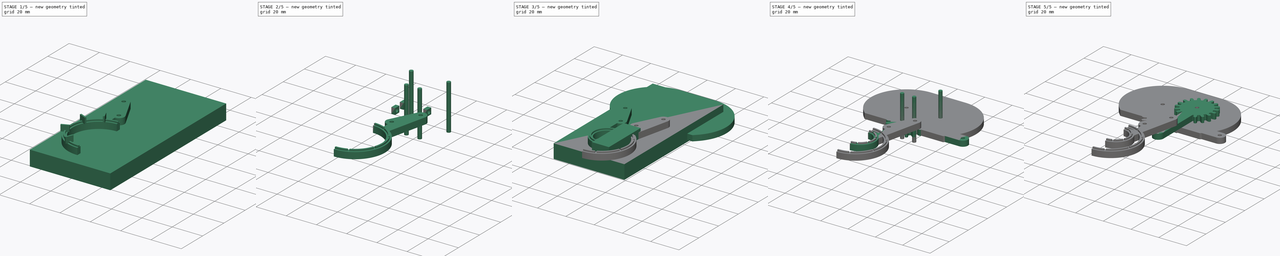
[diagram: build sequence overview — one tinted view per stage of 5, left to right]
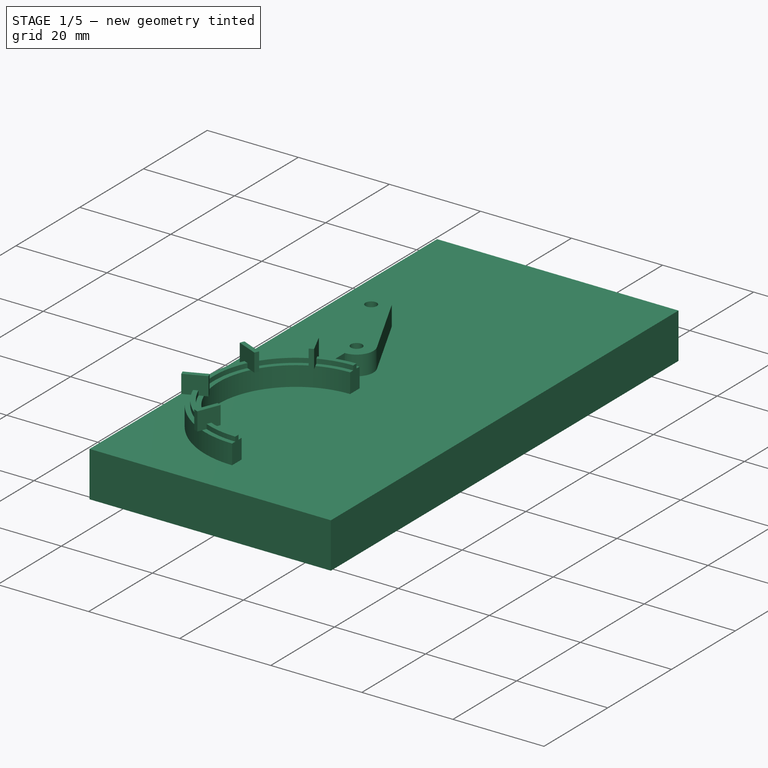
[diagram: stage 1 of 5 — iso view after this stage's code; geometry added in this stage tinted green]
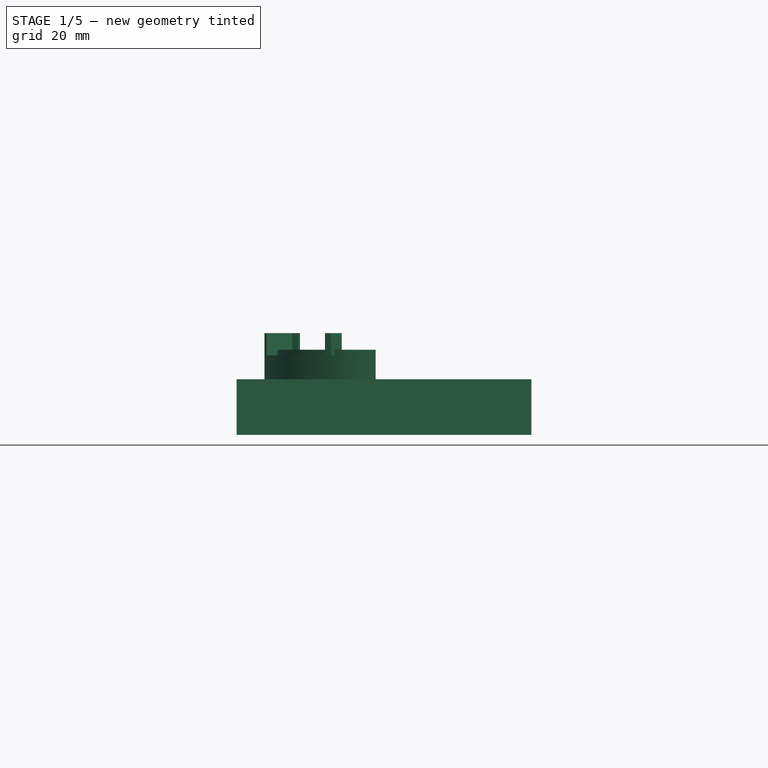
[diagram: stage 1 of 5 — front view after this stage's code; geometry added in this stage tinted green]
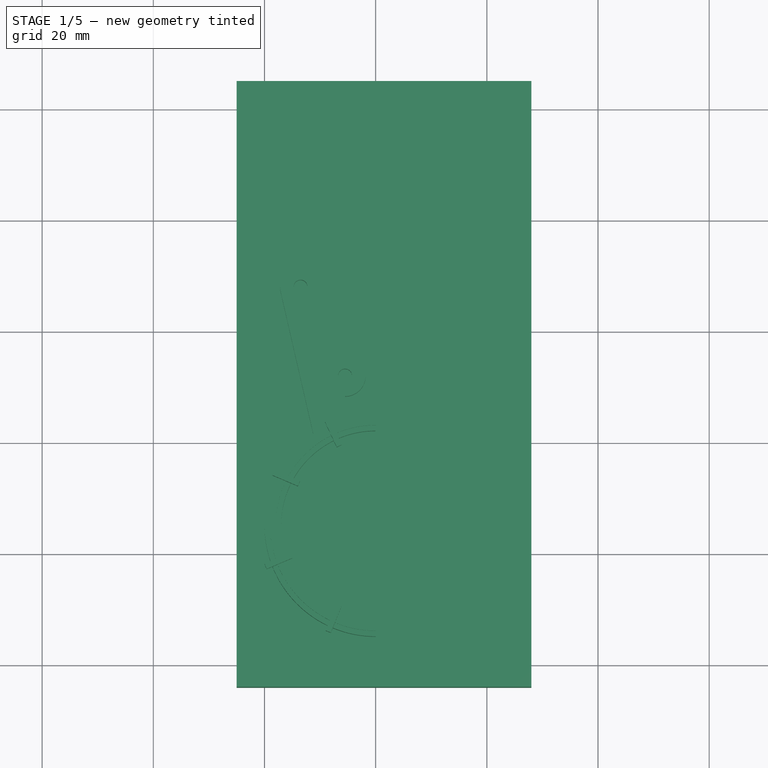
[diagram: stage 1 of 5 — top view after this stage's code; geometry added in this stage tinted green]
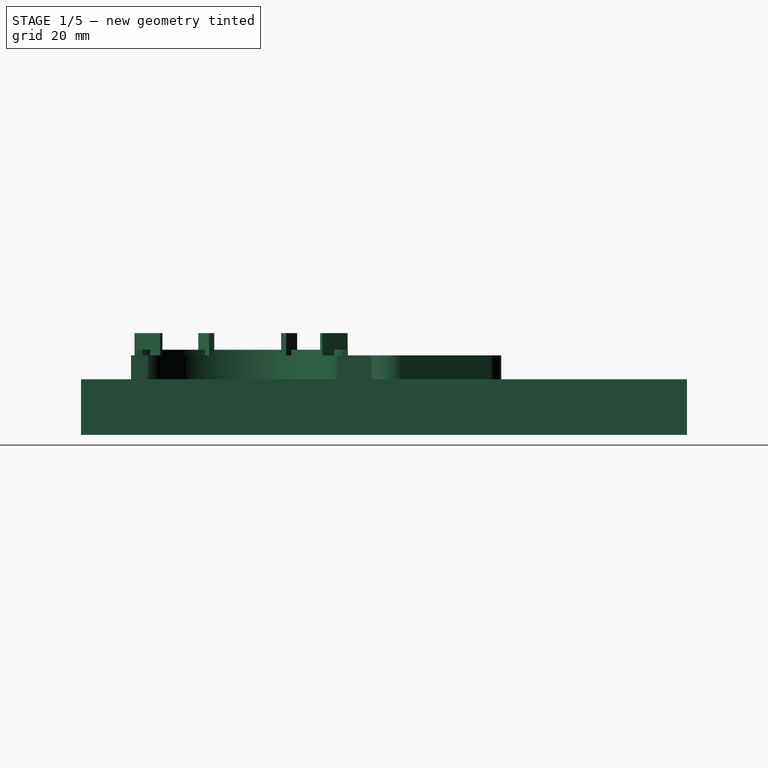
[diagram: stage 1 of 5 — right view after this stage's code; geometry added in this stage tinted green]
FCSTD DOCUMENT  (FreeCAD 0.19R24267 +99 (Git))
Label: garra_marina
License: All rights reserved
LicenseURL: http://en.wikipedia.org/wiki/All_rights_reserved
objects: Part::Cut×22, Part::Box×20, Part::FeaturePython×19, Part::MultiFuse×18, Part::Cylinder×16, Sketcher::SketchObject×10, PartDesign::Pad×8, PartDesign::Pocket×2, Part::Part2DObjectPython×2, Part::Extrusion×2, Part::Mirroring×2, PartDesign::Body×1
note: 132 computed .brp shape members not serialized (recipe doc carries the construction recipe); baked Part::Feature solids carry a one-line shape summary decoded from their .brp

FEATURE [Sketcher::SketchObject] Sketch008  label="finger-sketch001"
  FullyConstrained = false
  MapMode = 5
  sketch-geometry (9):
    g0: LineSegment StartX=0 StartY=0 StartZ=0 EndX=0 EndY=18 EndZ=0
    g1: LineSegment StartX=0 StartY=18 StartZ=0 EndX=-5.5 EndY=18 EndZ=0
    g2: LineSegment StartX=-5.5 StartY=18 StartZ=0 EndX=-5.5 EndY=25.2 EndZ=0
    g3: LineSegment StartX=-17.1064 StartY=44.073 StartZ=0 EndX=-7 EndY=0 EndZ=0
    g4: LineSegment StartX=-7 StartY=0 StartZ=0 EndX=0 EndY=0 EndZ=0
    g5: ArcOfCircle CenterX=-13.5 CenterY=44.9 CenterZ=0 NormalX=0 NormalY=0 NormalZ=1 AngleXU=0 Radius=3.7 StartAngle=0.463648 EndAngle=3.36701
    g6: ArcOfCircle CenterX=-5.5 CenterY=28.9 CenterZ=0 NormalX=0 NormalY=0 NormalZ=1 AngleXU=0 Radius=3.7 StartAngle=4.71239 EndAngle=6.74684
    g7: LineSegment StartX=-10.1906 StartY=46.5547 StartZ=0 EndX=-2.19063 EndY=30.5547 EndZ=0
    g8: Circle CenterX=-5.5 CenterY=28.9 CenterZ=0 NormalX=0 NormalY=0 NormalZ=1 AngleXU=0 Radius=3.7
  constraints (27):
    c: Vertical(g0)
    c: Coincident(g0,g1)
    c: Horizontal(g1)
    c: Coincident(g1,g2)
    c: Coincident(g3,g4)
    c: Coincident(g4,g0)
    c: Horizontal(g4)
    c: Coincident(g5,g3)
    c: Radius(g5) = 3.7
    c: Coincident(g6,g2)
    c: Coincident(g7,g5)
    c: Coincident(g7,g6)
    c: Equal(g6,g5)
    c: Tangent(g3,g5)
    c: Tangent(g7,g5)
    c: Tangent(g6,g7)
    c: Vertical(g2)
    c: DistanceY(g0) = 18
    c: DistanceX(g4) = 7
    c: DistanceX(g6,g5) = -8
    c: DistanceY(g6,g5) = 16
    c: PointOnObject(g6,g2)
    c: DistanceX(g1) = -5.5
    c: DistanceY(g2,g1) = -7.2
    c: Coincident(g0,g-1)
    c: Coincident(g8,g6)
    c: Equal(g6,g8)
FEATURE [Part::Box] Box008  label="Cubo006"
  AttacherType = Attacher::AttachEngine3D
  Height = 15
  Length = 22
  Placement = pos=(0,-79,0) rot=(0,0,1;0rad)
  Width = 51
FEATURE [Part::Cylinder] Cylinder014  label="finger-drill-master006"
  Angle = 360
  AttacherType = Attacher::AttachEngine3D
  Height = 30
  Placement = pos=(0,0,-8) rot=(0,0,1;0rad)
  Radius = 1.25
FEATURE [Part::FeaturePython] Clone027  label="finger-claw-drill-003"  # Draft clone (typed FeaturePython)
  Objects = -> [Cylinder014]
  Placement = pos=(-13.5,44.9,-8) rot=(0,0,1;0rad)
  Scale = (1,1,1)
FEATURE [Part::FeaturePython] Clone028  label="finger-claw-drill-004"  # Draft clone (typed FeaturePython)
  Objects = -> [Cylinder014]
  Placement = pos=(-5.5,28.9,-8) rot=(0,0,1;0rad)
  Scale = (1,1,1)
FEATURE [Part::FeaturePython] Tube001  # WARN: FeaturePython — macro-defined, semantics opaque (R4)
  AttacherType = Attacher::AttachEngine3D
  Height = 14
  InnerRadius = 18
  OuterRadius = 19
  Placement = pos=(0,-55,0) rot=(0,0,1;0rad)
FEATURE [Part::MultiFuse] Fusion022  label="finger-drills001"
  Shapes = -> [Clone027,Clone028]
FEATURE [PartDesign::Pad] Pad008  label="finger-body001"
  AllowMultiFace = false
  Direction = (1,1,1)
  Length = 13
  Length2 = 100
  Profile = -> Sketch008
  Type = 0
FEATURE [Sketcher::SketchObject] Sketch009
  ExternalGeometry = -> [Pad008]
  FullyConstrained = false
  MapMode = 5
  Placement = pos=(10.4694,5.23469,0) rot=(0.400447,0.647936,0.647936;2.37981rad)
  Support = -> [Pad008]
  sketch-geometry (6):
    g0: LineSegment StartX=23.2529 StartY=8.7 StartZ=0 EndX=51.2529 EndY=8.7 EndZ=0
    g1: LineSegment StartX=51.2529 StartY=8.7 StartZ=0 EndX=51.2529 EndY=4.3 EndZ=0
    g2: LineSegment StartX=51.2529 StartY=4.3 StartZ=0 EndX=23.2529 EndY=4.3 EndZ=0
    g3: LineSegment StartX=23.2529 StartY=4.3 StartZ=0 EndX=23.2529 EndY=8.7 EndZ=0
    g4: LineSegment StartX=23.2529 StartY=6.5 StartZ=0 EndX=51.2529 EndY=6.5 EndZ=0
    g5: LineSegment StartX=37.2529 StartY=13 StartZ=0 EndX=37.2529 EndY=0 EndZ=0
  constraints (18):
    c: Coincident(g0,g1)
    c: Coincident(g1,g2)
    c: Coincident(g2,g3)
    c: Coincident(g3,g0)
    c: Horizontal(g0)
    c: Horizontal(g2)
    c: Vertical(g1)
    c: Vertical(g3)
    c: PointOnObject(g4,g3)
    c: PointOnObject(g4,g1)
    c: Symmetric(g2,g0,g4)
    c: DistanceY(g1) = -4.4
    c: PointOnObject(g5,g-3)
    c: PointOnObject(g5,g-1)
    c: Symmetric(g-3,g-3,g5)
    c: Symmetric(g4,g4,g5)
    c: DistanceX(g2) = -28
    c: Symmetric(g5,g5,g4)
FEATURE [PartDesign::Pocket] Pocket001  label="finger001"
  AllowMultiFace = false
  Length = 7.4
  Length2 = 100
  Profile = -> Sketch009
  Type = 0
FEATURE [Part::Cut] Cut019  label="finger-final-src001"
  Base = -> Pocket001
  Placement = pos=(0,-57,0) rot=(0,0,1;0rad)
  Tool = -> Fusion022
FEATURE [Part::Box] Box009  label="Cubo007"
  AttacherType = Attacher::AttachEngine3D
  Height = 4
  Length = 1
  Placement = pos=(-9,-74,13) rot=(0,0,-1;0.383972rad)
  Width = 5
FEATURE [Part::Box] Box010  label="Cubo008"
  AttacherType = Attacher::AttachEngine3D
  Height = 4
  Length = 1
  Placement = pos=(-7,-41,13) rot=(0,0,1;0.436332rad)
  Width = 5
FEATURE [Part::Box] Box011  label="Cubo009"
  AttacherType = Attacher::AttachEngine3D
  Height = 4
  Length = 1
  Placement = pos=(-20,-62,13) rot=(0,0,-1;1.16937rad)
  Width = 5
FEATURE [Part::Box] Box012  label="Cubo010"
  AttacherType = Attacher::AttachEngine3D
  Height = 4
  Length = 1
  Placement = pos=(-14,-48,13) rot=(0,0,1;1.16937rad)
  Width = 5
FEATURE [Part::MultiFuse] Fusion020
  Shapes = -> [Box009,Box011,Box012,Box010]
FEATURE [Part::Cylinder] Cylinder015  label="Cilindro003"
  Angle = 360
  AttacherType = Attacher::AttachEngine3D
  Height = 14
  Placement = pos=(0,-55,0) rot=(0,0,1;0rad)
  Radius = 17
FEATURE [Part::Cylinder] Cylinder016  label="Cilindro004"
  Angle = 360
  AttacherType = Attacher::AttachEngine3D
  Height = 13
  Placement = pos=(0,-55,0) rot=(0,0,1;0rad)
  Radius = 20
FEATURE [Part::MultiFuse] Fusion018
  Shapes = -> [Cylinder016,Cut019]
FEATURE [Part::Box] Box013  label="Cubo011"
  AttacherType = Attacher::AttachEngine3D
  Height = 15
  Length = 25
  Placement = pos=(0,-78,0) rot=(0,0,1;0rad)
  Width = 47
FEATURE [Part::MultiFuse] Fusion021
  Shapes = -> [Cylinder015,Box013]
FEATURE [Part::Cut] Cut020
  Base = -> Tube001
  Tool = -> Box008
FEATURE [Part::Cut] Cut021
  Base = -> Fusion018
  Tool = -> Fusion021
FEATURE [Part::Box] Box019  label="Cubo017"
  AttacherType = Attacher::AttachEngine3D
  Height = 10
  Length = 53
  Placement = pos=(-25,-84,-1.3) rot=(0,0,1;0rad)
  Width = 109
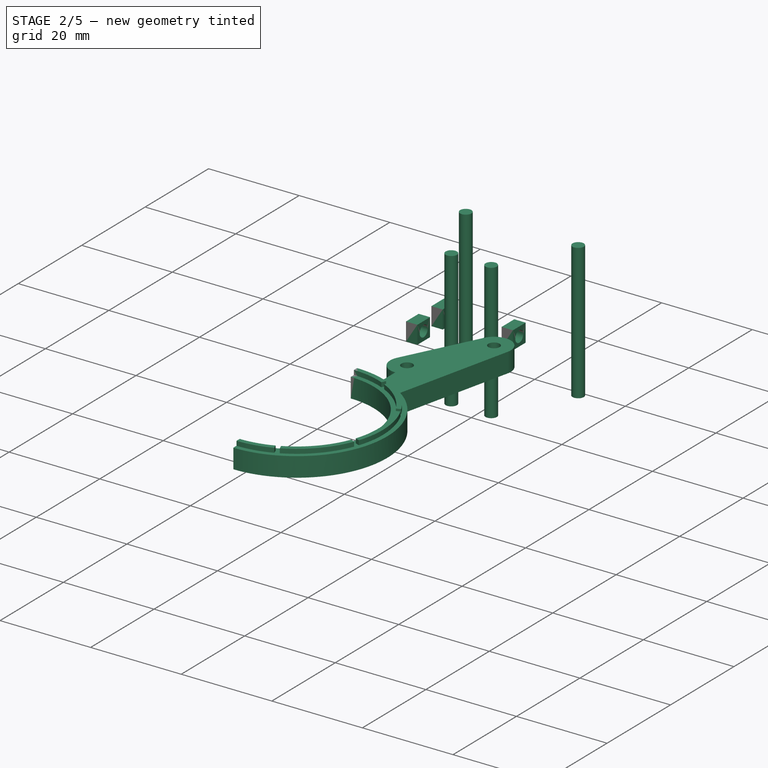
[diagram: stage 2 of 5 — iso view after this stage's code; geometry added in this stage tinted green]
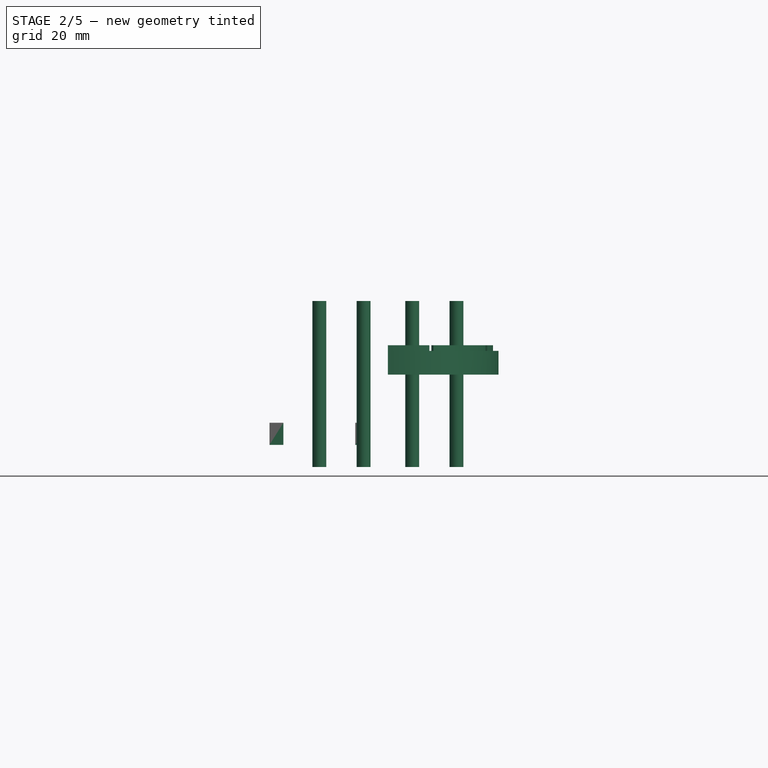
[diagram: stage 2 of 5 — front view after this stage's code; geometry added in this stage tinted green]
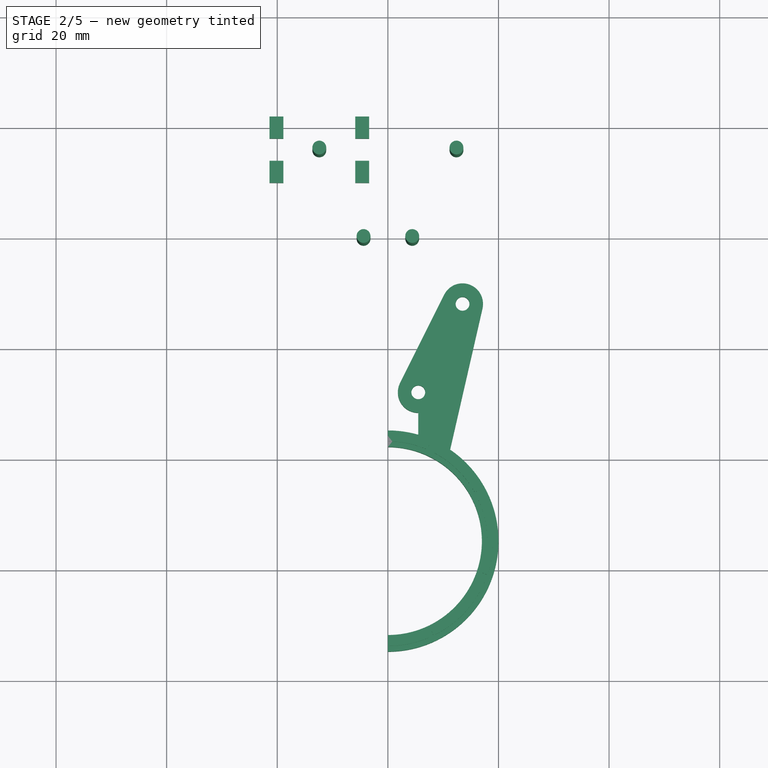
[diagram: stage 2 of 5 — top view after this stage's code; geometry added in this stage tinted green]
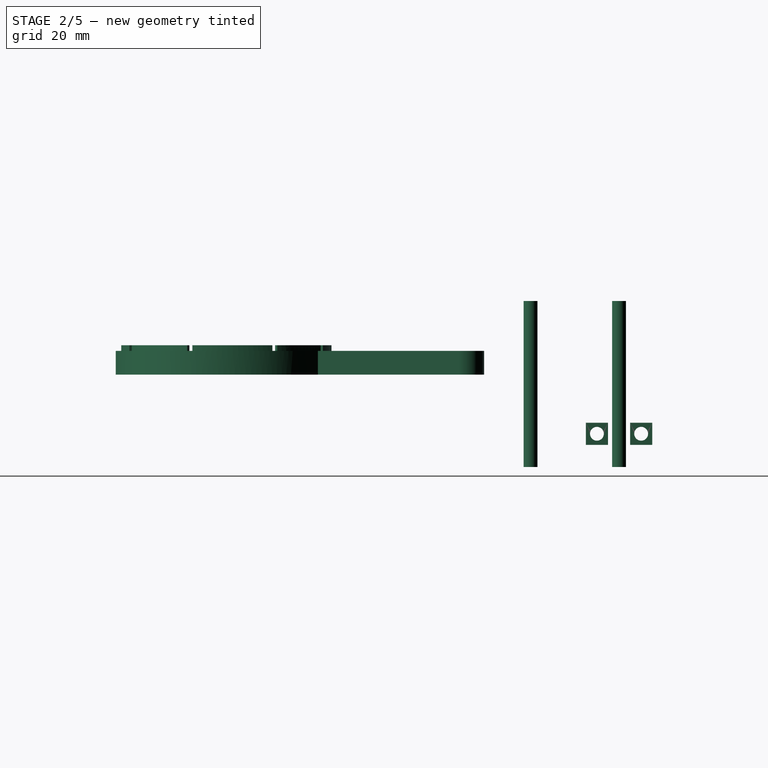
[diagram: stage 2 of 5 — right view after this stage's code; geometry added in this stage tinted green]
FEATURE [Part::Cylinder] Cylinder012  label="finger-drill-master005"
  Angle = 360
  AttacherType = Attacher::AttachEngine3D
  Height = 30
  Placement = pos=(0,0,-8) rot=(0,0,1;0rad)
  Radius = 1.25
FEATURE [Part::FeaturePython] Clone023  label="base-drill-005"  # Draft clone (typed FeaturePython)
  Objects = -> [Cylinder012]
  Placement = pos=(-12.4012,16,-8) rot=(0,0,1;0rad)
  Scale = (1,1,1)
FEATURE [Part::FeaturePython] Clone024  label="base-drill-006"  # Draft clone (typed FeaturePython)
  Objects = -> [Cylinder012]
  Placement = pos=(-4.40118,-8.68002e-11,-8) rot=(0,0,1;0rad)
  Scale = (1,1,1)
FEATURE [Part::FeaturePython] Clone025  label="base-drill-007"  # Draft clone (typed FeaturePython)
  Objects = -> [Cylinder012]
  Placement = pos=(12.4011,16,-8) rot=(0,0,1;0rad)
  Scale = (1,1,1)
FEATURE [Part::FeaturePython] Clone026  label="base-drill-008"  # Draft clone (typed FeaturePython)
  Objects = -> [Cylinder012]
  Placement = pos=(4.40118,-5.3081e-11,-8) rot=(0,0,1;0rad)
  Scale = (1,1,1)
FEATURE [Part::Cylinder] Cylinder013  label="Cilindro002"
  Angle = 360
  AttacherType = Attacher::AttachEngine3D
  Height = 10
  Placement = pos=(-12.4,16,-3) rot=(0,0,1;0rad)
  Radius = 1.25
FEATURE [Part::MultiFuse] Fusion019
  Shapes = -> [Cut020,Cut021]
FEATURE [Part::Cut] Cut018  label="claw-finger001"
  Base = -> Fusion019
  Tool = -> Fusion020
FEATURE [Part::Cut] Cut027  label="left-crawl"
  Base = -> Cut018
  Tool = -> Box019
FEATURE [Part::Box] Box020  label="Cubo018"
  AttacherType = Attacher::AttachEngine3D
  Height = 4
  Length = 2.5
  Placement = pos=(-21.4,18,4) rot=(0,0,1;0rad)
  Width = 4
FEATURE [Part::Cylinder] Cylinder017  label="Cilindro005"
  Angle = 360
  AttacherType = Attacher::AttachEngine3D
  Height = 10
  Placement = pos=(-21.4,20,6) rot=(0,1,0;1.5708rad)
  Radius = 1.25
FEATURE [Part::Cut] Cut028
  Base = -> Box020
  Placement = pos=(0,0,-8) rot=(0,0,1;0rad)
  Tool = -> Cylinder017
FEATURE [Part::Box] Box021  label="Cubo019"
  AttacherType = Attacher::AttachEngine3D
  Height = 4
  Length = 2.5
  Placement = pos=(-21.4,18,4) rot=(0,0,1;0rad)
  Width = 4
FEATURE [Part::Cylinder] Cylinder018  label="Cilindro006"
  Angle = 360
  AttacherType = Attacher::AttachEngine3D
  Height = 10
  Placement = pos=(-21.4,20,6) rot=(0,1,0;1.5708rad)
  Radius = 1.25
FEATURE [Part::Cut] Cut029
  Base = -> Box021
  Placement = pos=(15.5,0,-8) rot=(0,0,1;0rad)
  Tool = -> Cylinder018
FEATURE [Part::Box] Box022  label="Cubo020"
  AttacherType = Attacher::AttachEngine3D
  Height = 4
  Length = 2.5
  Placement = pos=(-21.4,18,4) rot=(0,0,1;0rad)
  Width = 4
FEATURE [Part::Cylinder] Cylinder019  label="Cilindro007"
  Angle = 360
  AttacherType = Attacher::AttachEngine3D
  Height = 10
  Placement = pos=(-21.4,20,6) rot=(0,1,0;1.5708rad)
  Radius = 1.25
FEATURE [Part::Cut] Cut030
  Base = -> Box022
  Placement = pos=(15.5,-8,-8) rot=(0,0,1;0rad)
  Tool = -> Cylinder019
FEATURE [Part::Box] Box023  label="Cubo021"
  AttacherType = Attacher::AttachEngine3D
  Height = 4
  Length = 2.5
  Placement = pos=(-21.4,18,4) rot=(0,0,1;0rad)
  Width = 4
FEATURE [Part::Cylinder] Cylinder020  label="Cilindro008"
  Angle = 360
  AttacherType = Attacher::AttachEngine3D
  Height = 10
  Placement = pos=(-21.4,20,6) rot=(0,1,0;1.5708rad)
  Radius = 1.25
FEATURE [Part::Cut] Cut031
  Base = -> Box023
  Placement = pos=(0,-8,-8) rot=(0,0,1;0rad)
  Tool = -> Cylinder020
FEATURE [Part::Mirroring] Part__Mirroring001  label="left-crawl (Mirror #2)"
  Base = (0,0,0)
  Normal = (1,0,0)
  Source = -> Cut027
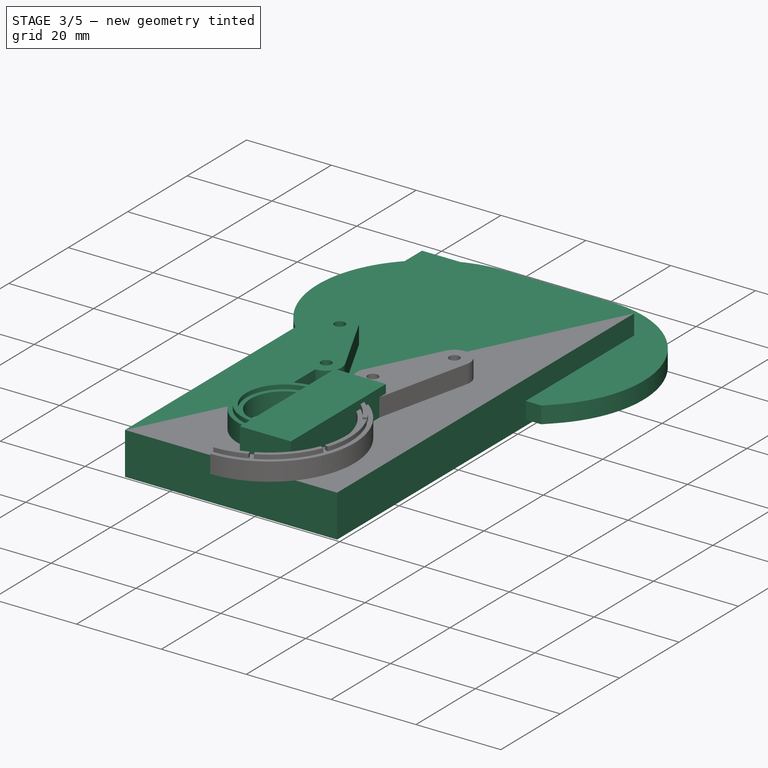
[diagram: stage 3 of 5 — iso view after this stage's code; geometry added in this stage tinted green]
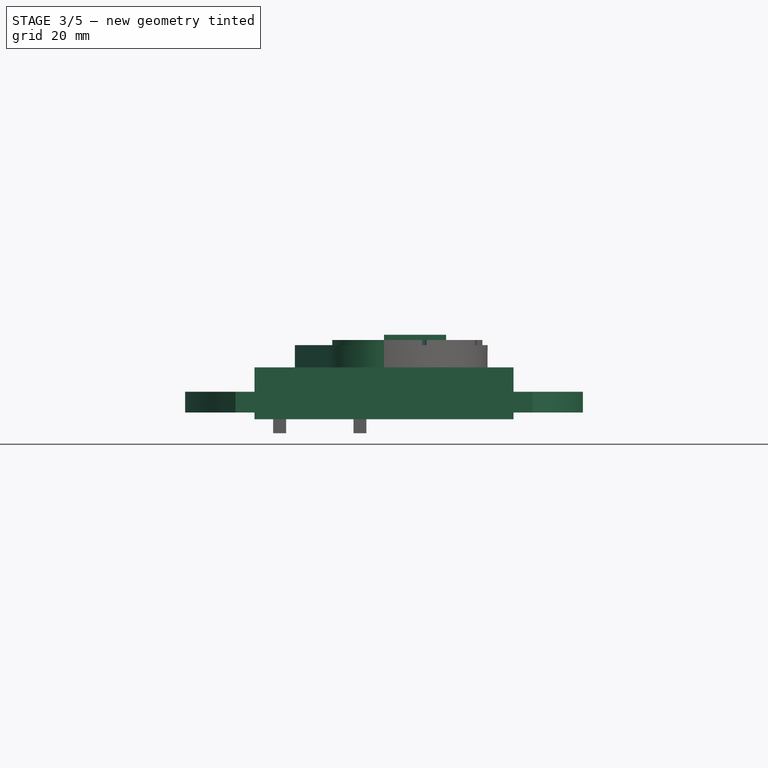
[diagram: stage 3 of 5 — front view after this stage's code; geometry added in this stage tinted green]
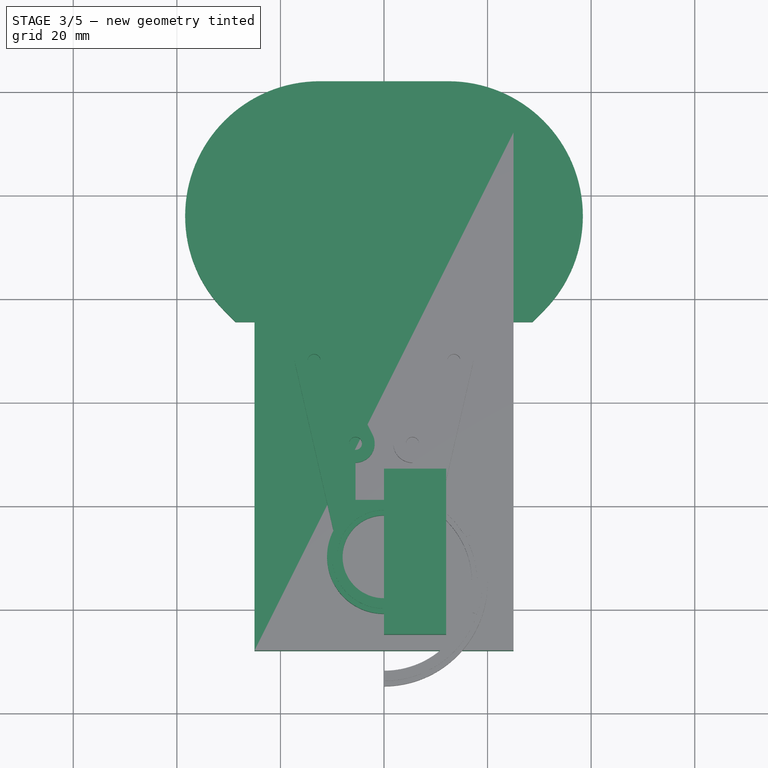
[diagram: stage 3 of 5 — top view after this stage's code; geometry added in this stage tinted green]
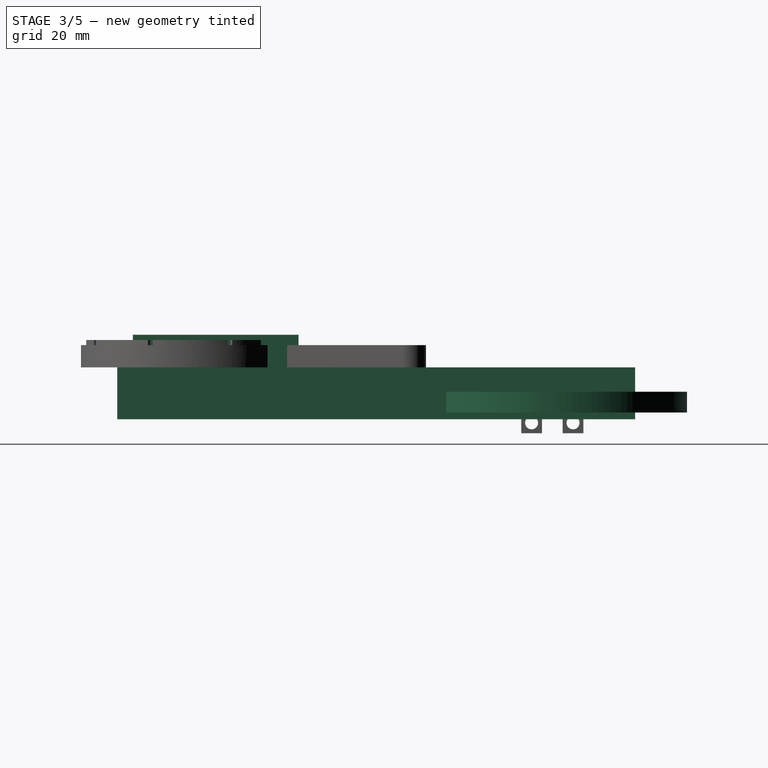
[diagram: stage 3 of 5 — right view after this stage's code; geometry added in this stage tinted green]
FEATURE [Part::Cylinder] Cylinder  label="finger-drill-master"
  Angle = 360
  AttacherType = Attacher::AttachEngine3D
  Height = 30
  Placement = pos=(0,0,-8) rot=(0,0,1;0rad)
  Radius = 1.25
FEATURE [Sketcher::SketchObject] Sketch  label="finger-sketch"
  FullyConstrained = false
  MapMode = 5
  sketch-geometry (9):
    g0: LineSegment StartX=0 StartY=0 StartZ=0 EndX=0 EndY=18 EndZ=0
    g1: LineSegment StartX=0 StartY=18 StartZ=0 EndX=-5.5 EndY=18 EndZ=0
    g2: LineSegment StartX=-5.5 StartY=18 StartZ=0 EndX=-5.5 EndY=25.2 EndZ=0
    g3: LineSegment StartX=-17.1064 StartY=44.073 StartZ=0 EndX=-7 EndY=0 EndZ=0
    g4: LineSegment StartX=-7 StartY=0 StartZ=0 EndX=0 EndY=0 EndZ=0
    g5: ArcOfCircle CenterX=-13.5 CenterY=44.9 CenterZ=0 NormalX=0 NormalY=0 NormalZ=1 AngleXU=0 Radius=3.7 StartAngle=0.463648 EndAngle=3.36701
    g6: ArcOfCircle CenterX=-5.5 CenterY=28.9 CenterZ=0 NormalX=0 NormalY=0 NormalZ=1 AngleXU=0 Radius=3.7 StartAngle=4.71239 EndAngle=6.74684
    g7: LineSegment StartX=-10.1906 StartY=46.5547 StartZ=0 EndX=-2.19063 EndY=30.5547 EndZ=0
    g8: Circle CenterX=-5.5 CenterY=28.9 CenterZ=0 NormalX=0 NormalY=0 NormalZ=1 AngleXU=0 Radius=3.7
  constraints (27):
    c: Vertical(g0)
    c: Coincident(g0,g1)
    c: Horizontal(g1)
    c: Coincident(g1,g2)
    c: Coincident(g3,g4)
    c: Coincident(g4,g0)
    c: Horizontal(g4)
    c: Coincident(g5,g3)
    c: Radius(g5) = 3.7
    c: Coincident(g6,g2)
    c: Coincident(g7,g5)
    c: Coincident(g7,g6)
    c: Equal(g6,g5)
    c: Tangent(g3,g5)
    c: Tangent(g7,g5)
    c: Tangent(g6,g7)
    c: Vertical(g2)
    c: DistanceY(g0) = 18
    c: DistanceX(g4) = 7
    c: DistanceX(g6,g5) = -8
    c: DistanceY(g6,g5) = 16
    c: PointOnObject(g6,g2)
    c: DistanceX(g1) = -5.5
    c: DistanceY(g2,g1) = -7.2
    c: Coincident(g0,g-1)
    c: Coincident(g8,g6)
    c: Equal(g6,g8)
FEATURE [Part::FeaturePython] Clone002  label="finger-claw-drill-2"  # Draft clone (typed FeaturePython)
  Objects = -> [Cylinder]
  Placement = pos=(-13.5,44.9,-8) rot=(0,0,1;0rad)
  Scale = (1,1,1)
FEATURE [PartDesign::Pad] Pad001  label="finger-body"
  AllowMultiFace = false
  Direction = (1,1,1)
  Length = 13
  Length2 = 100
  Profile = -> Sketch
  Type = 0
FEATURE [Sketcher::SketchObject] Sketch001
  ExternalGeometry = -> [Pad001]
  FullyConstrained = false
  MapMode = 5
  Placement = pos=(10.4694,5.23469,0) rot=(0.400447,0.647936,0.647936;2.37981rad)
  Support = -> [Pad001]
  sketch-geometry (6):
    g0: LineSegment StartX=23.2529 StartY=8.7 StartZ=0 EndX=51.2529 EndY=8.7 EndZ=0
    g1: LineSegment StartX=51.2529 StartY=8.7 StartZ=0 EndX=51.2529 EndY=4.3 EndZ=0
    g2: LineSegment StartX=51.2529 StartY=4.3 StartZ=0 EndX=23.2529 EndY=4.3 EndZ=0
    g3: LineSegment StartX=23.2529 StartY=4.3 StartZ=0 EndX=23.2529 EndY=8.7 EndZ=0
    g4: LineSegment StartX=23.2529 StartY=6.5 StartZ=0 EndX=51.2529 EndY=6.5 EndZ=0
    g5: LineSegment StartX=37.2529 StartY=13 StartZ=0 EndX=37.2529 EndY=0 EndZ=0
  constraints (18):
    c: Coincident(g0,g1)
    c: Coincident(g1,g2)
    c: Coincident(g2,g3)
    c: Coincident(g3,g0)
    c: Horizontal(g0)
    c: Horizontal(g2)
    c: Vertical(g1)
    c: Vertical(g3)
    c: PointOnObject(g4,g3)
    c: PointOnObject(g4,g1)
    c: Symmetric(g2,g0,g4)
    c: DistanceY(g1) = -4.4
    c: PointOnObject(g5,g-3)
    c: PointOnObject(g5,g-1)
    c: Symmetric(g-3,g-3,g5)
    c: Symmetric(g4,g4,g5)
    c: DistanceX(g2) = -28
    c: Symmetric(g5,g5,g4)
FEATURE [PartDesign::Pocket] Pocket  label="finger"
  AllowMultiFace = false
  Length = 7.4
  Length2 = 100
  Profile = -> Sketch001
  Type = 0
FEATURE [Part::FeaturePython] Clone001  label="finger-claw-drill-1"  # Draft clone (typed FeaturePython)
  Objects = -> [Cylinder]
  Placement = pos=(-5.5,28.9,-8) rot=(0,0,1;0rad)
  Scale = (1,1,1)
FEATURE [Part::MultiFuse] Fusion  label="finger-drills"
  Shapes = -> [Clone002,Clone001]
FEATURE [Part::Cut] Cut  label="finger-final-src"
  Base = -> Pocket
  Placement = pos=(0,-57,0) rot=(0,0,1;0rad)
  Tool = -> Fusion
FEATURE [Part::Box] Box003  label="Cubo001"
  AttacherType = Attacher::AttachEngine3D
  Height = 15
  Length = 12
  Placement = pos=(0,-65,0) rot=(0,0,1;0rad)
  Width = 32
FEATURE [Part::Cylinder] Cylinder007  label="Cilindro"
  Angle = 360
  AttacherType = Attacher::AttachEngine3D
  Height = 14
  Placement = pos=(0,-50,0) rot=(0,0,1;0rad)
  Radius = 8
FEATURE [Part::Box] Box002  label="Cubo"
  AttacherType = Attacher::AttachEngine3D
  Height = 15
  Length = 12
  Placement = pos=(0,-65,0) rot=(0,0,1;0rad)
  Width = 32
FEATURE [Part::MultiFuse] Fusion013
  Shapes = -> [Cylinder007,Box002]
FEATURE [Part::Cylinder] Cylinder008  label="Cilindro001"
  Angle = 360
  AttacherType = Attacher::AttachEngine3D
  Height = 13
  Placement = pos=(0,-50,0) rot=(0,0,1;0rad)
  Radius = 11
FEATURE [Part::MultiFuse] Fusion012
  Shapes = -> [Cylinder008,Cut]
FEATURE [Part::FeaturePython] Tube  # WARN: FeaturePython — macro-defined, semantics opaque (R4)
  AttacherType = Attacher::AttachEngine3D
  Height = 14
  InnerRadius = 9
  OuterRadius = 10
  Placement = pos=(0,-50,0) rot=(0,0,1;0rad)
FEATURE [Part::Cut] Cut011
  Base = -> Fusion012
  Tool = -> Fusion013
FEATURE [Sketcher::SketchObject] Sketch006  label="base-sketch001"
  FullyConstrained = true
  MapMode = 5
  sketch-geometry (10):
    g0: LineSegment StartX=28.6696 StartY=-4.5 StartZ=0 EndX=-28.6696 EndY=-4.5 EndZ=0
    g1: LineSegment StartX=-28.6696 StartY=-4.5 StartZ=0 EndX=-30.7848 EndY=-2.38478 EndZ=0
    g2: LineSegment StartX=28.6696 StartY=-4.5 StartZ=0 EndX=30.7848 EndY=-2.38478 EndZ=0
    g3: ArcOfCircle CenterX=-12.4 CenterY=16 CenterZ=0 NormalX=0 NormalY=0 NormalZ=1 AngleXU=0 Radius=26 StartAngle=1.5708 EndAngle=3.92699
    g4: ArcOfCircle CenterX=12.4 CenterY=16 CenterZ=0 NormalX=0 NormalY=0 NormalZ=1 AngleXU=0 Radius=26 StartAngle=5.49779 EndAngle=7.85398
    g5: LineSegment StartX=-12.4 StartY=42 StartZ=0 EndX=12.4001 EndY=42 EndZ=0
    g6: LineSegment StartX=-12.4 StartY=16 StartZ=0 EndX=12.4 EndY=16 EndZ=0
    g7: LineSegment StartX=-12.4 StartY=16 StartZ=0 EndX=-4.4 EndY=0 EndZ=0
    g8: LineSegment StartX=-4.4 StartY=0 StartZ=0 EndX=4.4 EndY=0 EndZ=0
    g9: LineSegment StartX=4.4 StartY=0 StartZ=0 EndX=12.4 EndY=16 EndZ=0
  constraints (26):
    c: Coincident(g0,g1)
    c: Coincident(g0,g2)
    c: Coincident(g3,g1)
    c: Horizontal(g5)
    c: Coincident(g5,g3)
    c: Coincident(g5,g4)
    c: Coincident(g7,g8)
    c: Coincident(g8,g9)
    c: Coincident(g9,g6)
    c: Coincident(g7,g6)
    c: PointOnObject(g8,g-1)
    c: Symmetric(g7,g8,g-2)
    c: Symmetric(g6,g6,g-2)
    c: DistanceX(g8) = 8.8
    c: DistanceX(g6) = 24.8
    c: DistanceY(g6,g8) = -16
    c: Symmetric(g0,g0,g-2)
    c: DistanceY(g8,g0) = -4.5
    c: Angle(g-1,g1) = 2.35619
    c: Coincident(g3,g6)
    c: Coincident(g4,g6)
    c: Tangent(g1,g3)
    c: Coincident(g2,g4)
    c: Symmetric(g1,g2,g-2)
    c: Tangent(g5,g3)
    c: Radius(g3) = 26
FEATURE [PartDesign::Pad] Pad006  label="base-body001"
  AllowMultiFace = false
  Direction = (1,1,1)
  Length = 4
  Length2 = 100
  Profile = -> Sketch006
  Type = 0
FEATURE [Part::MultiFuse] Fusion016  label="base-drills001"
  Shapes = -> [Clone023,Clone025,Clone024,Clone026]
FEATURE [Part::Cut] Cut014  label="base-copia001"
  Base = -> Pad006
  Tool = -> Fusion016
FEATURE [Part::Cut] Cut015  label="base"
  Base = -> Cut014
  Tool = -> Cylinder013
FEATURE [Part::Box] Box018  label="Cubo016"
  AttacherType = Attacher::AttachEngine3D
  Height = 10
  Length = 50
  Placement = pos=(-25,-68,-1.3) rot=(0,0,1;0rad)
  Width = 100
FEATURE [Part::MultiFuse] Fusion023  label="basee"
  Shapes = -> [Cut028,Cut029,Cut030,Cut031,Cut015]
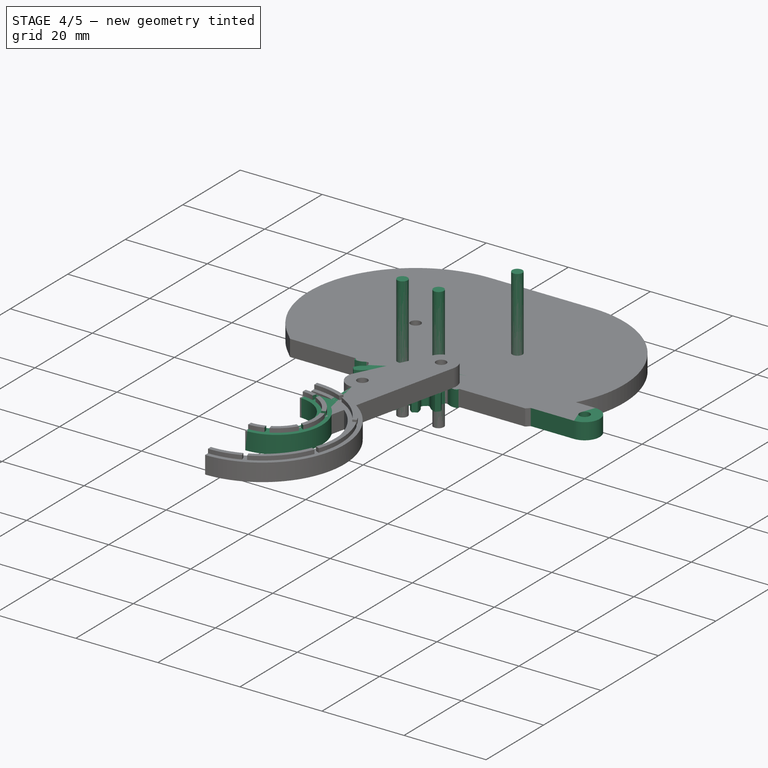
[diagram: stage 4 of 5 — iso view after this stage's code; geometry added in this stage tinted green]
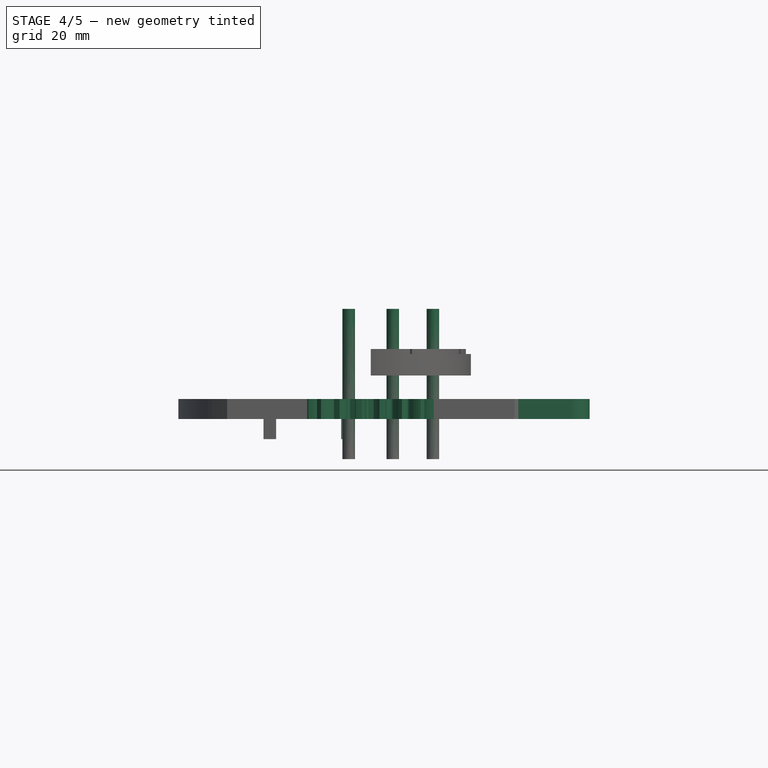
[diagram: stage 4 of 5 — front view after this stage's code; geometry added in this stage tinted green]
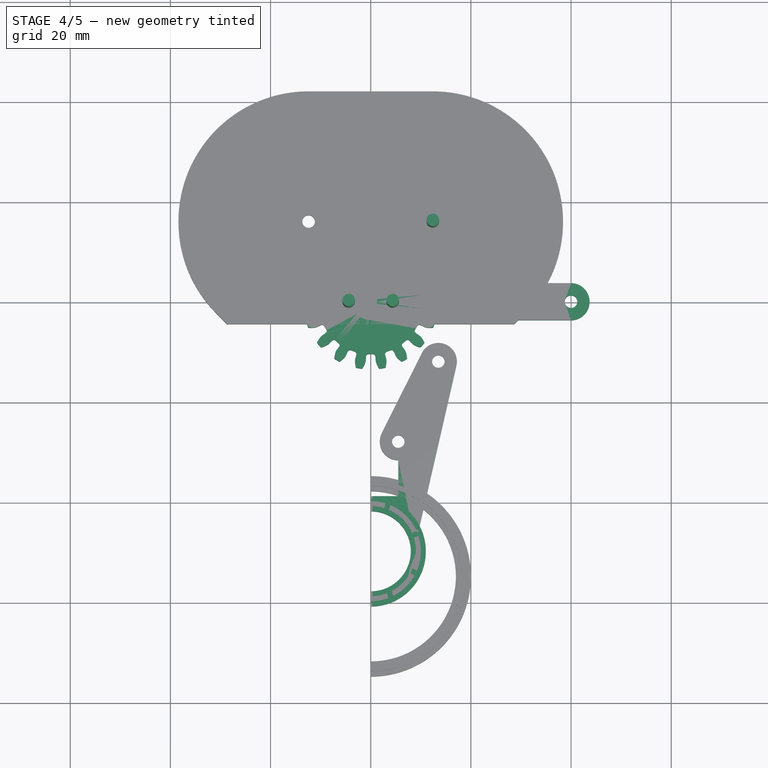
[diagram: stage 4 of 5 — top view after this stage's code; geometry added in this stage tinted green]
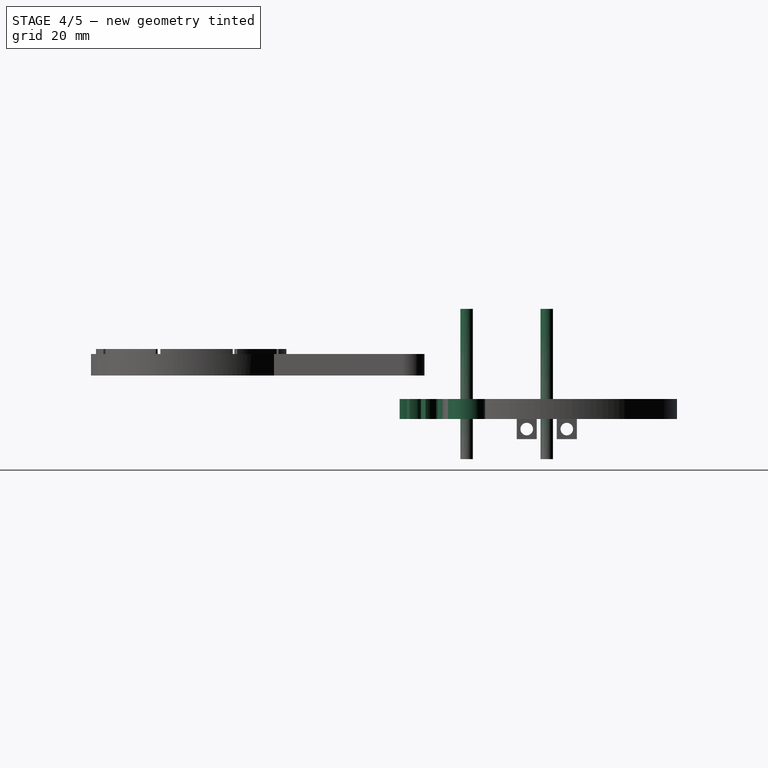
[diagram: stage 4 of 5 — right view after this stage's code; geometry added in this stage tinted green]
FEATURE [Part::Box] Box004  label="Cubo002"
  AttacherType = Attacher::AttachEngine3D
  Height = 4
  Length = 1
  Placement = pos=(-3,-44,13) rot=(0,0,1;0.279253rad)
  Width = 5
FEATURE [Part::Box] Box006  label="Cubo004"
  AttacherType = Attacher::AttachEngine3D
  Height = 4
  Length = 1
  Placement = pos=(-5,-61,13) rot=(0,0,-1;0.261799rad)
  Width = 5
FEATURE [Part::Box] Box007  label="Cubo005"
  AttacherType = Attacher::AttachEngine3D
  Height = 4
  Length = 1
  Placement = pos=(-11,-55,13) rot=(0,0,-1;1.0472rad)
  Width = 5
FEATURE [Part::Box] Box005  label="Cubo003"
  AttacherType = Attacher::AttachEngine3D
  Height = 4
  Length = 1
  Placement = pos=(-7,-48,13) rot=(0,0,1;1.16937rad)
  Width = 5
FEATURE [Part::MultiFuse] Fusion015
  Shapes = -> [Box006,Box007,Box005,Box004]
FEATURE [Part::Cut] Cut012
  Base = -> Tube
  Tool = -> Box003
FEATURE [Part::MultiFuse] Fusion014
  Shapes = -> [Cut012,Cut011]
FEATURE [Part::Cut] Cut013  label="claw-finger"
  Base = -> Fusion014
  Tool = -> Fusion015
FEATURE [Part::Cylinder] Cylinder010  label="finger-drill-master003"
  Angle = 360
  AttacherType = Attacher::AttachEngine3D
  Height = 30
  Placement = pos=(0,0,-8) rot=(0,0,1;0rad)
  Radius = 1.25
FEATURE [Sketcher::SketchObject] Sketch003  label="link-body-sketch001"
  FullyConstrained = false
  MapMode = 5
  sketch-geometry (4):
    g0: ArcOfCircle CenterX=0 CenterY=0 CenterZ=0 NormalX=0 NormalY=0 NormalZ=1 AngleXU=0 Radius=3.7 StartAngle=1.5708 EndAngle=4.71239
    g1: ArcOfCircle CenterX=40 CenterY=0 CenterZ=0 NormalX=0 NormalY=0 NormalZ=1 AngleXU=0 Radius=3.7 StartAngle=4.71239 EndAngle=7.85398
    g2: LineSegment StartX=0 StartY=-3.7 StartZ=0 EndX=40 EndY=-3.7 EndZ=0
    g3: LineSegment StartX=0 StartY=3.7 StartZ=0 EndX=40 EndY=3.7 EndZ=0
  constraints (9):
    c: Tangent(g0,g3) = 1.5708
    c: Tangent(g0,g2) = -1.5708
    c: Tangent(g2,g1) = -1.5708
    c: Tangent(g3,g1) = 1.5708
    c: Horizontal(g2)
    c: Equal(g0,g1)
    c: Coincident(g0,g-1)
    c: Radius(g0) = 3.7
    c: DistanceX(g2) = 40
FEATURE [Sketcher::SketchObject] Sketch004  label="link-body-sketch002"
  FullyConstrained = false
  MapMode = 5
  sketch-geometry (4):
    g0: ArcOfCircle CenterX=0 CenterY=0 CenterZ=0 NormalX=0 NormalY=0 NormalZ=1 AngleXU=0 Radius=3.7 StartAngle=1.5708 EndAngle=4.71239
    g1: ArcOfCircle CenterX=40 CenterY=0 CenterZ=0 NormalX=0 NormalY=0 NormalZ=1 AngleXU=0 Radius=3.7 StartAngle=4.71239 EndAngle=7.85398
    g2: LineSegment StartX=0 StartY=-3.7 StartZ=0 EndX=40 EndY=-3.7 EndZ=0
    g3: LineSegment StartX=0 StartY=3.7 StartZ=0 EndX=40 EndY=3.7 EndZ=0
  constraints (9):
    c: Tangent(g0,g3) = 1.5708
    c: Tangent(g0,g2) = -1.5708
    c: Tangent(g2,g1) = -1.5708
    c: Tangent(g3,g1) = 1.5708
    c: Horizontal(g2)
    c: Equal(g0,g1)
    c: Coincident(g0,g-1)
    c: Radius(g0) = 3.7
    c: DistanceX(g2) = 40
FEATURE [Part::FeaturePython] Clone011  label="gear-drill-2"  # Draft clone (typed FeaturePython)
  Objects = -> [Cylinder010]
  Placement = pos=(40,0,-8) rot=(0,0,1;0rad)
  Scale = (1,1,1)
FEATURE [Part::Part2DObjectPython] InvoluteGear  # Draft 2D object (typed FeaturePython)
  ExternalGear = true
  HighPrecision = true
  MapMode = 5
  Modules = 1.35
  NumberOfTeeth = 18
  PressureAngle = 12
FEATURE [Part::Extrusion] Extrude
  Base = -> InvoluteGear
  Dir = (0,0,4)
  DirMode = 0
  FaceMakerClass = Part::FaceMakerExtrusion
  LengthFwd = 0
  LengthRev = 0
  Solid = true
  Symmetric = false
FEATURE [PartDesign::Pad] Pad003  label="link-body001"
  AllowMultiFace = false
  Direction = (1,1,1)
  Length = 4
  Length2 = 100
  Profile = -> Sketch003
  Type = 0
FEATURE [Part::Cylinder] Cylinder011  label="finger-drill-master004"
  Angle = 360
  AttacherType = Attacher::AttachEngine3D
  Height = 30
  Placement = pos=(0,0,-8) rot=(0,0,1;0rad)
  Radius = 1.25
FEATURE [Part::FeaturePython] Clone020  label="base-drill-2"  # Draft clone (typed FeaturePython)
  Objects = -> [Cylinder011]
  Placement = pos=(-4.40118,-8.68002e-11,-8) rot=(0,0,1;0rad)
  Scale = (1,1,1)
FEATURE [Part::FeaturePython] Clone021  label="base-drill-3"  # Draft clone (typed FeaturePython)
  Objects = -> [Cylinder011]
  Placement = pos=(12.4011,16,-8) rot=(0,0,1;0rad)
  Scale = (1,1,1)
FEATURE [Part::FeaturePython] Clone022  label="base-drill-4"  # Draft clone (typed FeaturePython)
  Objects = -> [Cylinder011]
  Placement = pos=(4.40118,-5.3081e-11,-8) rot=(0,0,1;0rad)
  Scale = (1,1,1)
FEATURE [Part::MultiFuse] Fusion017
  Shapes = -> [Extrude,Pad003]
FEATURE [Part::Cut] Cut016
  Base = -> Fusion017
  Tool = -> Clone011
FEATURE [Sketcher::SketchObject] Sketch007
  FullyConstrained = true
  MapMode = 5
  Support = -> [XY_Plane004]
  sketch-geometry (20):
    g0: LineSegment StartX=0 StartY=0 StartZ=0 EndX=0 EndY=1.25 EndZ=0
    g1: LineSegment StartX=0 StartY=0 StartZ=0 EndX=-1.25 EndY=0 EndZ=0
    g2: LineSegment StartX=0 StartY=0 StartZ=0 EndX=1.25 EndY=0 EndZ=0
    g3: LineSegment StartX=0 StartY=0 StartZ=0 EndX=0 EndY=-1.25 EndZ=0
    g4: LineSegment StartX=0 StartY=-1.25 StartZ=0 EndX=-0.5 EndY=-1.25 EndZ=0
    g5: LineSegment StartX=0 StartY=-1.25 StartZ=0 EndX=0.5 EndY=-1.25 EndZ=0
    g6: LineSegment StartX=-1.25 StartY=0 StartZ=0 EndX=-1.25 EndY=0.5 EndZ=0
    g7: LineSegment StartX=-1.25 StartY=0 StartZ=0 EndX=-1.25 EndY=-0.5 EndZ=0
    g8: LineSegment StartX=0 StartY=1.25 StartZ=0 EndX=-0.5 EndY=1.25 EndZ=0
    g9: LineSegment StartX=0 StartY=1.25 StartZ=0 EndX=0.5 EndY=1.25 EndZ=0
    g10: LineSegment StartX=1.25 StartY=0 StartZ=0 EndX=1.25 EndY=0.5 EndZ=0
    g11: LineSegment StartX=1.25 StartY=0 StartZ=0 EndX=1.25 EndY=-0.5 EndZ=0
    g12: LineSegment StartX=-1.25 StartY=0.5 StartZ=0 EndX=-0.5 EndY=0.5 EndZ=0
    g13: LineSegment StartX=0.5 StartY=1.25 StartZ=0 EndX=0.5 EndY=0.5 EndZ=0
    g14: LineSegment StartX=-0.5 StartY=1.25 StartZ=0 EndX=-0.5 EndY=0.5 EndZ=0
    g15: LineSegment StartX=-1.25 StartY=-0.5 StartZ=0 EndX=-0.5 EndY=-0.5 EndZ=0
    g16: LineSegment StartX=-0.5 StartY=-1.25 StartZ=0 EndX=-0.5 EndY=-0.5 EndZ=0
    g17: LineSegment StartX=1.25 StartY=-0.5 StartZ=0 EndX=0.5 EndY=-0.5 EndZ=0
    g18: LineSegment StartX=0.5 StartY=-1.25 StartZ=0 EndX=0.5 EndY=-0.5 EndZ=0
    g19: LineSegment StartX=1.25 StartY=0.5 StartZ=0 EndX=0.5 EndY=0.5 EndZ=0
  constraints (56):
    c: Coincident(g0,g-1)
    c: PointOnObject(g0,g-2)
    c: Coincident(g1,g-1)
    c: PointOnObject(g1,g-1)
    c: Coincident(g2,g-1)
    c: PointOnObject(g2,g-1)
    c: Coincident(g3,g-1)
    c: PointOnObject(g3,g-2)
    c: DistanceX(g1,g1) = 1.25
    c: DistanceX(g2,g2) = 1.25
    c: DistanceY(g0,g0) = 1.25
    c: DistanceY(g3,g3) = 1.25
    c: Coincident(g4,g3)
    c: Horizontal(g4)
    c: Coincident(g5,g4)
    c: Horizontal(g5)
    c: DistanceX(g4,g4) = 0.5
    c: DistanceX(g5,g5) = 0.5
    c: Coincident(g6,g1)
    c: Vertical(g6)
    c: Coincident(g7,g6)
    c: Vertical(g7)
    c: Coincident(g8,g0)
    c: Horizontal(g8)
    c: Coincident(g9,g8)
    c: Coincident(g10,g2)
    c: Vertical(g10)
    c: Coincident(g11,g10)
    c: Vertical(g11)
    c: Horizontal(g9)
    c: DistanceX(g8,g8) = 0.5
    c: DistanceX(g9,g9) = 0.5
    c: DistanceY(g10,g10) = 0.5
    c: DistanceY(g11,g11) = 0.5
    c: DistanceY(g7,g7) = 0.5
    c: DistanceY(g6,g6) = 0.5
    c: Coincident(g12,g6)
    c: Horizontal(g12)
    c: Coincident(g13,g9)
    c: Vertical(g13)
    c: Coincident(g14,g8)
    c: Coincident(g14,g12)
    c: Vertical(g14)
    c: Coincident(g15,g7)
    c: Horizontal(g15)
    c: Coincident(g16,g4)
    c: Coincident(g16,g15)
    c: Vertical(g16)
    c: Coincident(g17,g11)
    c: Horizontal(g17)
    c: Coincident(g18,g5)
    c: Coincident(g18,g17)
    c: Vertical(g18)
    c: Coincident(g19,g10)
    c: Coincident(g19,g13)
    c: Horizontal(g19)
FEATURE [PartDesign::Pad] Pad007
  Direction = (1,1,1)
  Length = 10
  Length2 = 100
  Profile = -> Sketch007
  Type = 0
FEATURE [PartDesign::Body] Body004
  Group = -> [Sketch007,Pad007]
  Origin = -> Origin004
  Placement = pos=(0,0,-3) rot=(0,0,1;0rad)
  Tip = -> Pad007
FEATURE [Part::Cut] Cut017  label="left-gear"
  Base = -> Cut016
  Tool = -> Body004
FEATURE [Part::Mirroring] Part__Mirroring  label="claw-finger-right"
  Base = (0,0,0)
  Normal = (1,0,0)
  Source = -> Cut013
FEATURE [Part::Cut] Cut026  label="right-crawl"
  Base = -> Part__Mirroring
  Tool = -> Box018
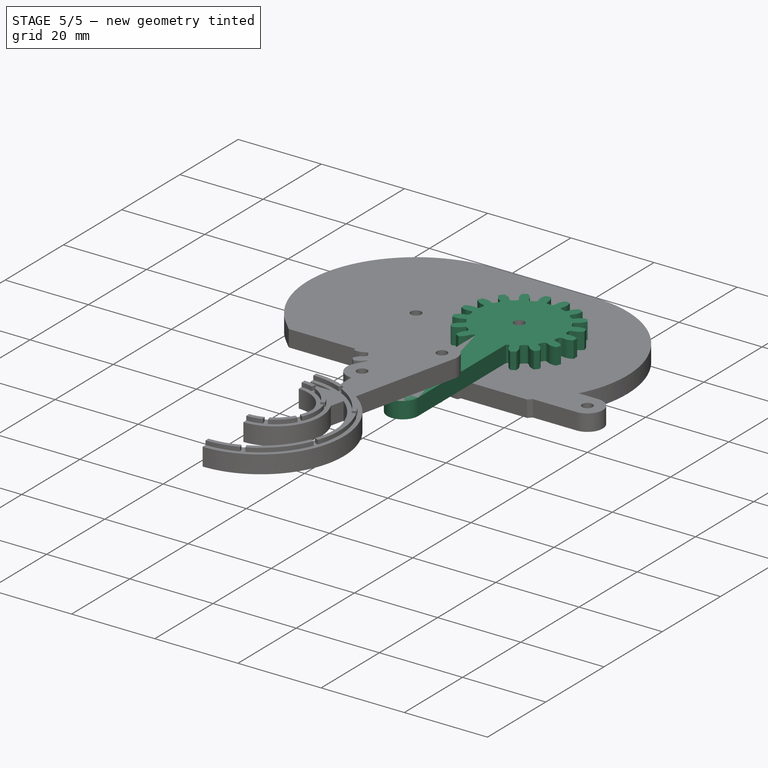
[diagram: stage 5 of 5 — iso view after this stage's code; geometry added in this stage tinted green]
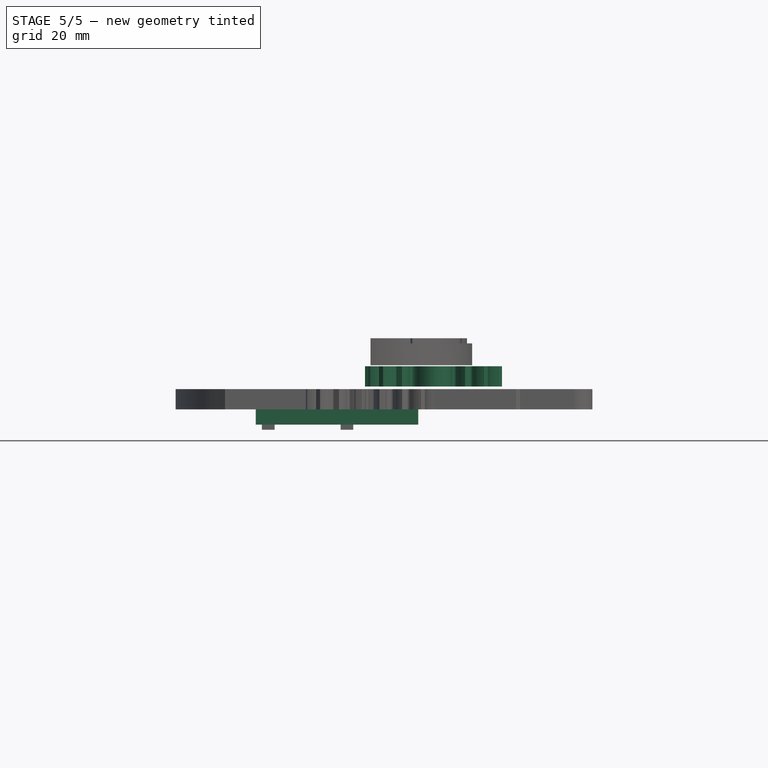
[diagram: stage 5 of 5 — front view after this stage's code; geometry added in this stage tinted green]
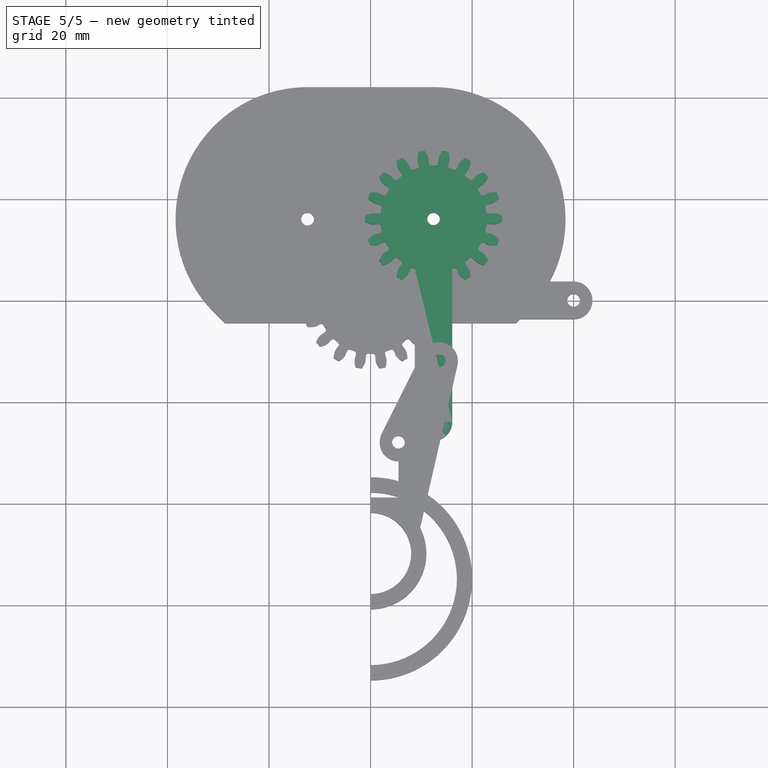
[diagram: stage 5 of 5 — top view after this stage's code; geometry added in this stage tinted green]
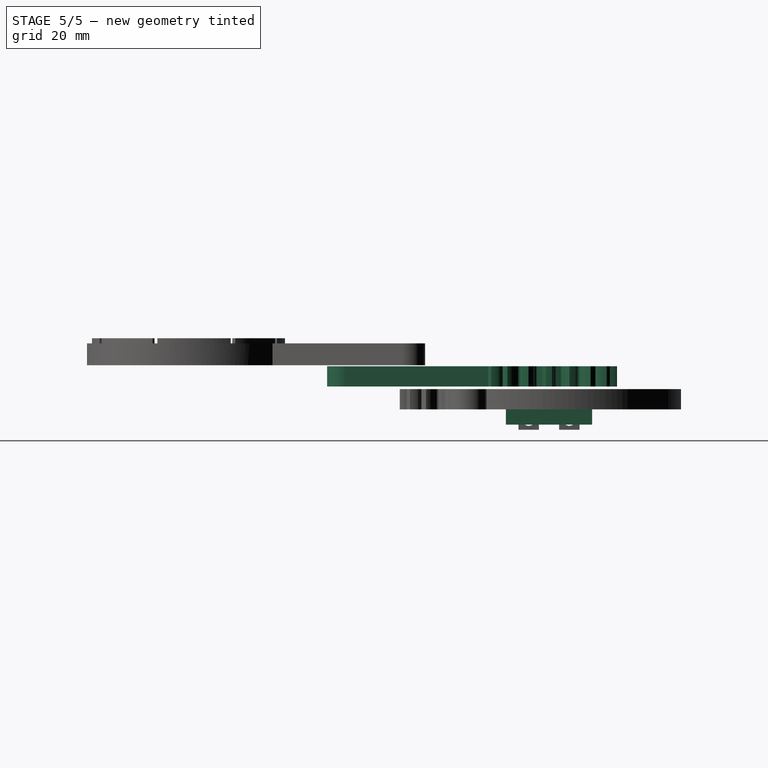
[diagram: stage 5 of 5 — right view after this stage's code; geometry added in this stage tinted green]
FEATURE [Part::Cylinder] Cylinder009  label="finger-drill-master001"
  Angle = 360
  AttacherType = Attacher::AttachEngine3D
  Height = 30
  Placement = pos=(0,0,-8) rot=(0,0,1;0rad)
  Radius = 1.25
FEATURE [Sketcher::SketchObject] Sketch002  label="link-body-sketch"
  FullyConstrained = false
  MapMode = 5
  sketch-geometry (4):
    g0: ArcOfCircle CenterX=0 CenterY=0 CenterZ=0 NormalX=0 NormalY=0 NormalZ=1 AngleXU=0 Radius=3.7 StartAngle=1.5708 EndAngle=4.71239
    g1: ArcOfCircle CenterX=40 CenterY=0 CenterZ=0 NormalX=0 NormalY=0 NormalZ=1 AngleXU=0 Radius=3.7 StartAngle=4.71239 EndAngle=7.85398
    g2: LineSegment StartX=0 StartY=-3.7 StartZ=0 EndX=40 EndY=-3.7 EndZ=0
    g3: LineSegment StartX=0 StartY=3.7 StartZ=0 EndX=40 EndY=3.7 EndZ=0
  constraints (9):
    c: Tangent(g0,g3) = 1.5708
    c: Tangent(g0,g2) = -1.5708
    c: Tangent(g2,g1) = -1.5708
    c: Tangent(g3,g1) = 1.5708
    c: Horizontal(g2)
    c: Equal(g0,g1)
    c: Coincident(g0,g-1)
    c: Radius(g0) = 3.7
    c: DistanceX(g2) = 40
FEATURE [Part::FeaturePython] Clone005  label="link-drill-1"  # Draft clone (typed FeaturePython)
  Objects = -> [Cylinder009]
  Placement = pos=(0,0,-8) rot=(0,0,1;0rad)
  Scale = (1,1,1)
FEATURE [Part::FeaturePython] Clone006  label="link-drill-002"  # Draft clone (typed FeaturePython)
  Objects = -> [Cylinder009]
  Placement = pos=(40,0,-8) rot=(0,0,1;0rad)
  Scale = (1,1,1)
FEATURE [Part::MultiFuse] Fusion001
  Shapes = -> [Clone005,Clone006]
FEATURE [PartDesign::Pad] Pad002  label="link-body"
  AllowMultiFace = false
  Direction = (1,1,1)
  Length = 3
  Length2 = 100
  Profile = -> Sketch002
  Type = 0
FEATURE [Part::Cut] Cut001  label="link-master"
  Base = -> Pad002
  Tool = -> Fusion001
FEATURE [Part::Cylinder] Cylinder001  label="finger-drill-master002"
  Angle = 360
  AttacherType = Attacher::AttachEngine3D
  Height = 30
  Placement = pos=(0,0,-8) rot=(0,0,1;0rad)
  Radius = 1.25
FEATURE [Part::Part2DObjectPython] InvoluteGear001  # Draft 2D object (typed FeaturePython)
  ExternalGear = true
  HighPrecision = true
  MapMode = 5
  Modules = 1.35
  NumberOfTeeth = 18
  Placement = pos=(0,0,0) rot=(0,0,-1;0.174533rad)
  PressureAngle = 12
FEATURE [Part::Extrusion] Extrude001
  Base = -> InvoluteGear001
  Dir = (0,0,4)
  DirMode = 0
  FaceMakerClass = Part::FaceMakerExtrusion
  LengthFwd = 0
  LengthRev = 0
  Solid = true
  Symmetric = false
FEATURE [PartDesign::Pad] Pad004  label="link-body002"
  AllowMultiFace = false
  Direction = (1,1,1)
  Length = 4
  Length2 = 100
  Profile = -> Sketch004
  Type = 0
FEATURE [Part::FeaturePython] Clone013  label="gear-drill-003"  # Draft clone (typed FeaturePython)
  Objects = -> [Cylinder001]
  Placement = pos=(0,0,-8) rot=(0,0,1;0rad)
  Scale = (1,1,1)
FEATURE [Part::FeaturePython] Clone014  label="gear-drill-004"  # Draft clone (typed FeaturePython)
  Objects = -> [Cylinder001]
  Placement = pos=(40,0,-8) rot=(0,0,1;0rad)
  Scale = (1,1,1)
FEATURE [Part::MultiFuse] Fusion005  label="gear-drills001"
  Shapes = -> [Clone013,Clone014]
FEATURE [Part::MultiFuse] Fusion006
  Shapes = -> [Pad004,Extrude001]
FEATURE [Part::Cut] Cut003  label="right-gear"
  Base = -> Fusion006
  Placement = pos=(12.4,16,4.5) rot=(0,0,-1;1.5708rad)
  Tool = -> Fusion005
FEATURE [Part::Box] Box001  label="Cube001"
  AttacherType = Attacher::AttachEngine3D
  Height = 16
  Length = 25
  Placement = pos=(-19.1,9.5,-9) rot=(0,0,1;0rad)
  Width = 13
FEATURE [Part::Box] Box  label="Cube"
  AttacherType = Attacher::AttachEngine3D
  Height = 6
  Length = 32
  Placement = pos=(-22.6,7.5,-3) rot=(0,0,1;0rad)
  Width = 17
FEATURE [Sketcher::SketchObject] Sketch005  label="base-sketch"
  FullyConstrained = false
  MapMode = 5
  sketch-geometry (10):
    g0: LineSegment StartX=14.5274 StartY=-4.5 StartZ=0 EndX=-14.5274 EndY=-4.5 EndZ=0
    g1: LineSegment StartX=-14.5274 StartY=-4.5 StartZ=0 EndX=-23.7137 EndY=4.68629 EndZ=0
    g2: LineSegment StartX=14.5274 StartY=-4.5 StartZ=0 EndX=23.7137 EndY=4.68629 EndZ=0
    g3: ArcOfCircle CenterX=-12.4 CenterY=16 CenterZ=0 NormalX=0 NormalY=0 NormalZ=1 AngleXU=0 Radius=16 StartAngle=1.5708 EndAngle=3.92699
    g4: ArcOfCircle CenterX=12.4 CenterY=16 CenterZ=0 NormalX=0 NormalY=0 NormalZ=1 AngleXU=0 Radius=16 StartAngle=5.49779 EndAngle=7.85398
    g5: LineSegment StartX=-12.4 StartY=32 StartZ=0 EndX=12.4001 EndY=32 EndZ=0
    g6: LineSegment StartX=-12.4 StartY=16 StartZ=0 EndX=12.4 EndY=16 EndZ=0
    g7: LineSegment StartX=-12.4 StartY=16 StartZ=0 EndX=-4.4 EndY=0 EndZ=0
    g8: LineSegment StartX=-4.4 StartY=0 StartZ=0 EndX=4.4 EndY=0 EndZ=0
    g9: LineSegment StartX=4.4 StartY=0 StartZ=0 EndX=12.4 EndY=16 EndZ=0
  constraints (29):
    c: Horizontal(g0)
    c: Coincident(g0,g1)
    c: Coincident(g0,g2)
    c: Coincident(g3,g1)
    c: Horizontal(g5)
    c: Coincident(g5,g3)
    c: Coincident(g5,g4)
    c: Horizontal(g6)
    c: Coincident(g7,g8)
    c: Horizontal(g8)
    c: Coincident(g8,g9)
    c: Coincident(g9,g6)
    c: Coincident(g7,g6)
    c: PointOnObject(g8,g-1)
    c: Symmetric(g7,g8,g-2)
    c: Symmetric(g6,g6,g-2)
    c: DistanceX(g8) = 8.8
    c: DistanceX(g6) = 24.8
    c: DistanceY(g6,g8) = -16
    c: Symmetric(g0,g0,g-2)
    c: DistanceY(g8,g0) = -4.5
    c: Angle(g-1,g1) = 2.35619
    c: Coincident(g3,g6)
    c: Coincident(g4,g6)
    c: Tangent(g1,g3)
    c: Coincident(g2,g4)
    c: Symmetric(g1,g2,g-2)
    c: Tangent(g5,g3)
    c: Radius(g3) = 16
FEATURE [PartDesign::Pad] Pad005  label="base-body"
  AllowMultiFace = false
  Direction = (1,1,1)
  Length = 4
  Length2 = 100
  Profile = -> Sketch005
  Type = 0
FEATURE [Part::FeaturePython] Clone019  label="base-drill-1"  # Draft clone (typed FeaturePython)
  Objects = -> [Cylinder011]
  Placement = pos=(-12.4012,16,-8) rot=(0,0,1;0rad)
  Scale = (1,1,1)
FEATURE [Part::MultiFuse] Fusion007  label="base-drills"
  Shapes = -> [Clone019,Clone021,Clone020,Clone022]
FEATURE [Part::Cut] Cut004  label="base-copia"
  Base = -> Pad005
  Tool = -> Fusion007
FEATURE [Part::MultiFuse] Fusion010
  Shapes = -> [Cut004,Box]
FEATURE [Part::Cut] Cut005
  Base = -> Fusion010
  Tool = -> Box001
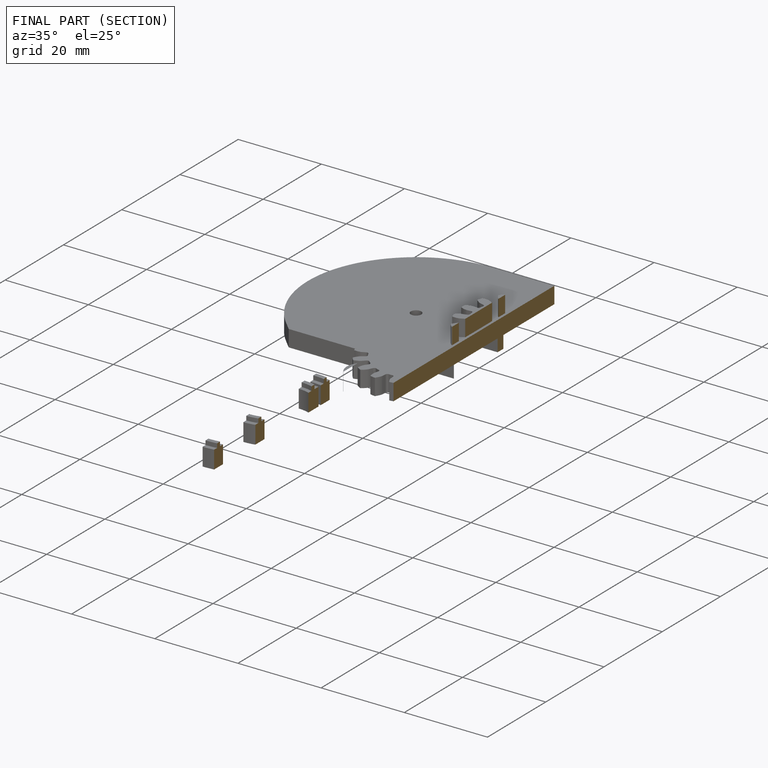
[diagram: finished part — half-section view (interior)]
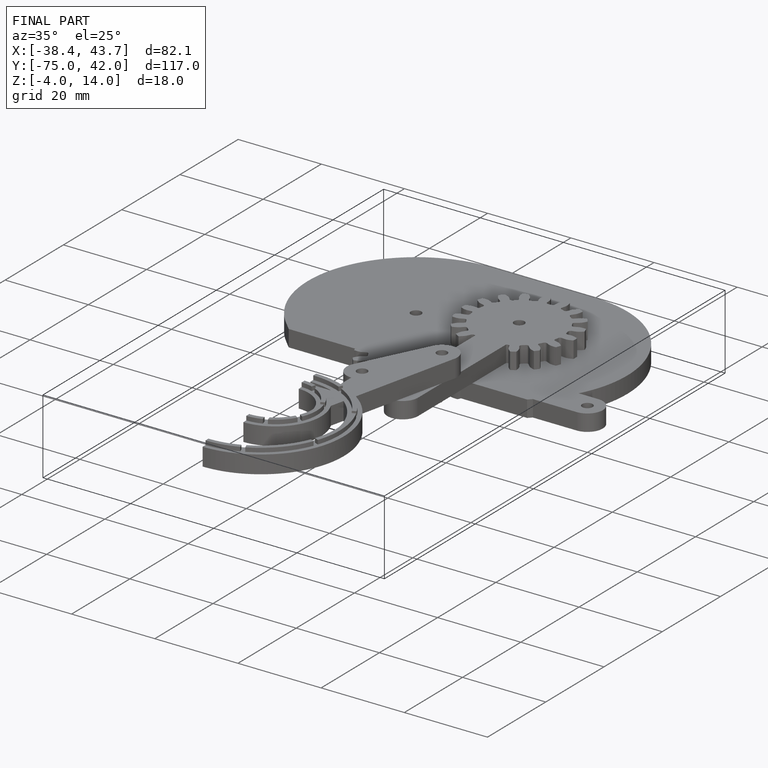
[diagram: finished part — iso view with bounding-box wireframe]
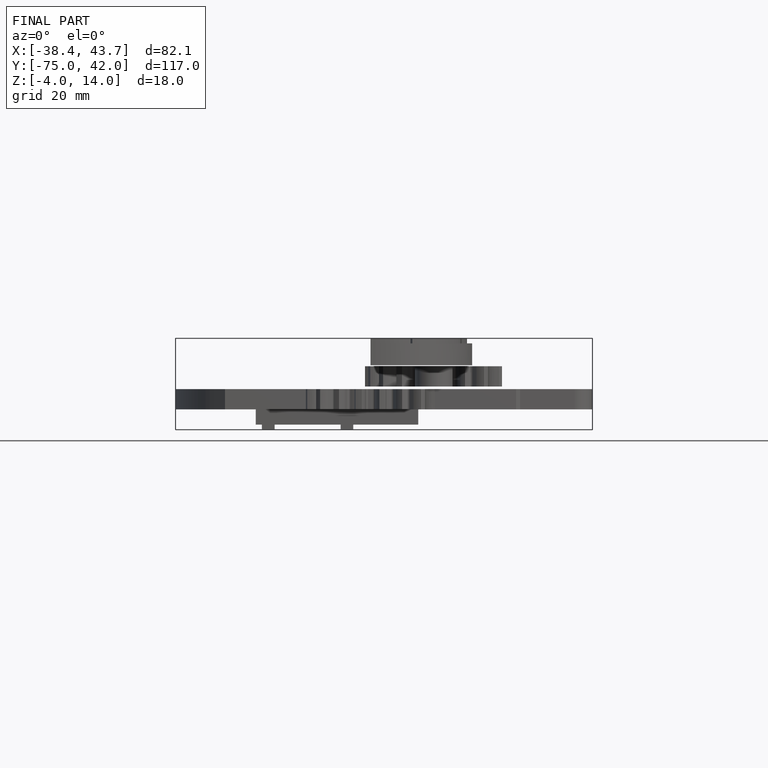
[diagram: finished part — front view with bounding-box wireframe]
